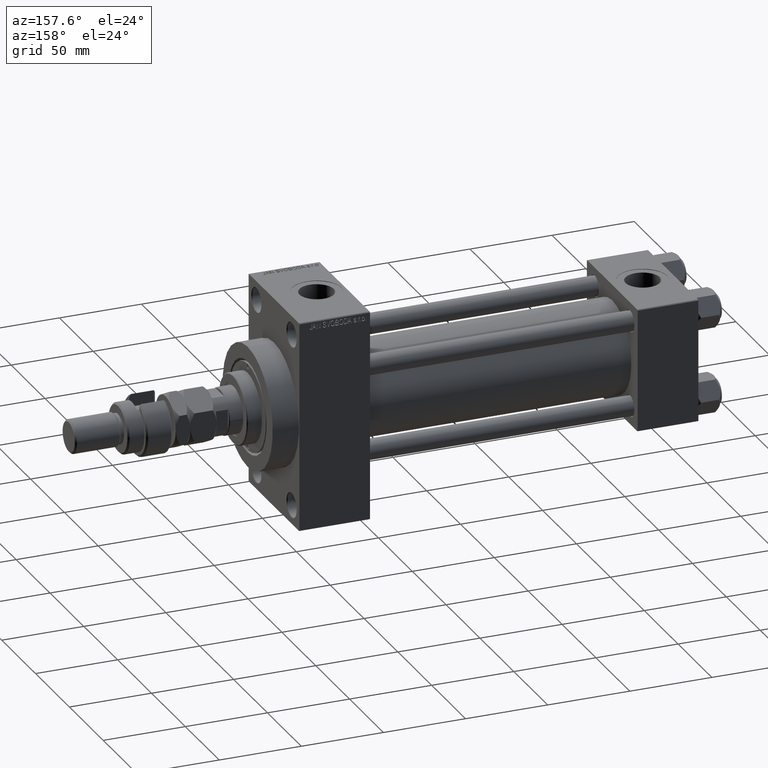
[diagram: clean part render]
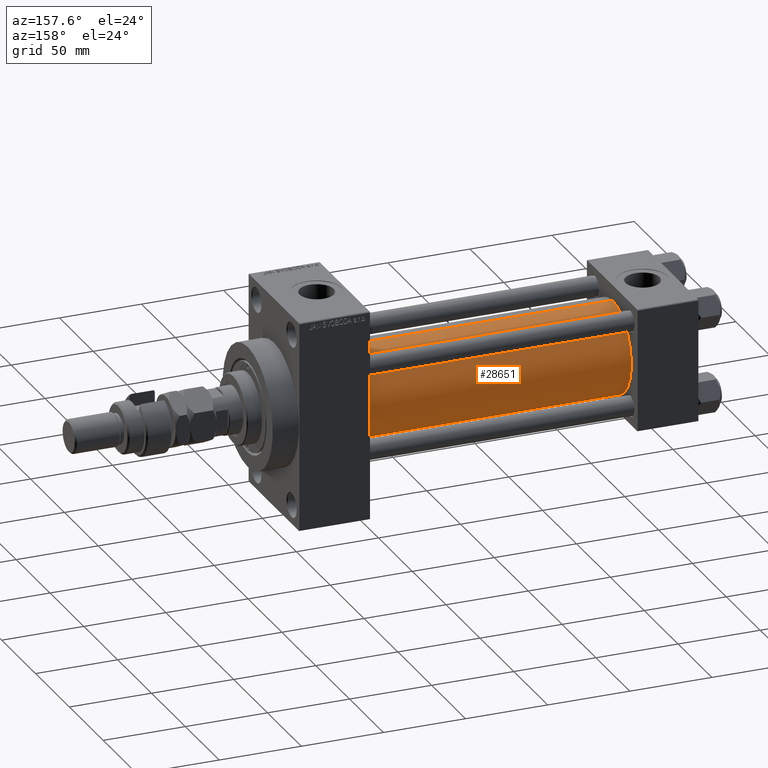
[diagram: same view with one face highlighted and labeled with its STEP entity id]
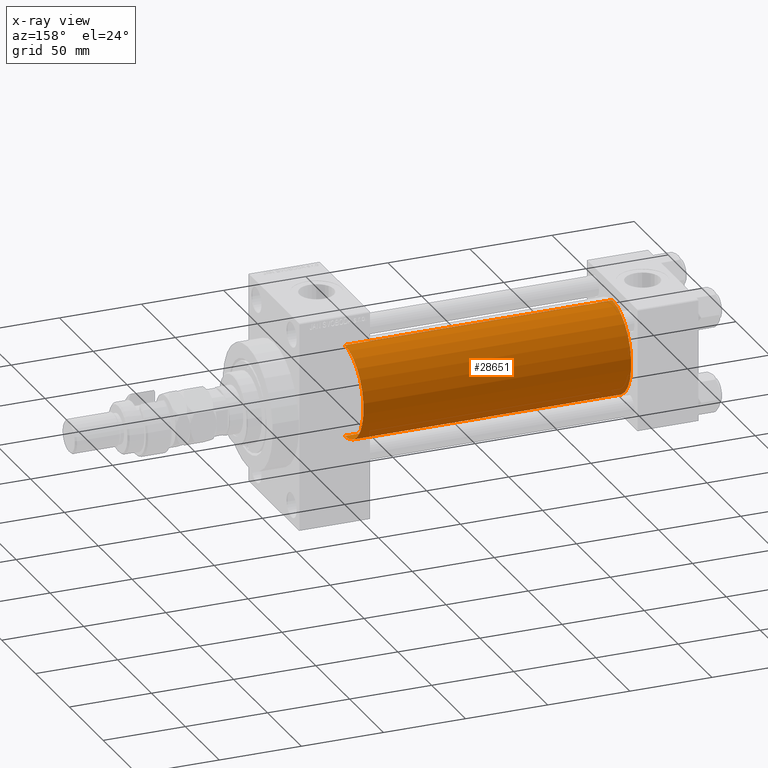
[diagram: x-ray of the same camera — body ghosted, the highlighted face saturated]
A machine part, auxiliary view. The second image highlights one B-rep face of the part: STEP entity #28651.
The next image is the same camera in x-ray: the body ghosted, the highlighted face saturated — about 0% of this face is hidden behind the body in this view.
In plain terms, the highlighted cylindrical surface (partial cylindrical patch) has radius 28 mm, axis along (-1, -0, -0).
Its self-contained STEP definition (entity closure, byte-faithful):
#1625 = AXIS2_PLACEMENT_3D ( 'NONE', #37743, #41563, #3440 ) ;
#2808 = EDGE_LOOP ( 'NONE', ( #40077, #16727, #9097, #43239 ) ) ;
#3440 = DIRECTION ( 'NONE',  ( 0.000000000000000000, 0.000000000000000000, 1.000000000000000000 ) ) ;
#8860 = LINE ( 'NONE', #24370, #11998 ) ;
#9097 = ORIENTED_EDGE ( 'NONE', *, *, #47866, .T. ) ;
#10425 = DIRECTION ( 'NONE',  ( 0.000000000000000000, 0.000000000000000000, 1.000000000000000000 ) ) ;
#11855 = EDGE_CURVE ( 'NONE', #27498, #47803, #23356, .T. ) ;
#11998 = VECTOR ( 'NONE', #28672, 1000.000000000000000 ) ;
#14305 = CARTESIAN_POINT ( 'NONE',  ( 200.0000000000000000, 8.269258236473784371E-16, -28.00000000000000000 ) ) ;
#14475 = DIRECTION ( 'NONE',  ( 0.000000000000000000, 0.000000000000000000, -1.000000000000000000 ) ) ;
#16175 = VERTEX_POINT ( 'NONE', #19103 ) ;
#16725 = CARTESIAN_POINT ( 'NONE',  ( 37.00000000000000711, -2.602085213965210642E-15, 28.00000000000000000 ) ) ;
#16727 = ORIENTED_EDGE ( 'NONE', *, *, #11855, .T. ) ;
#17355 = VECTOR ( 'NONE', #19535, 1000.000000000000000 ) ;
#17654 = AXIS2_PLACEMENT_3D ( 'NONE', #45487, #33806, #14475 ) ;
#19103 = CARTESIAN_POINT ( 'NONE',  ( 200.0000000000000000, -2.602085213965210642E-15, 28.00000000000000000 ) ) ;
#19535 = DIRECTION ( 'NONE',  ( -1.000000000000000000, -0.000000000000000000, -0.000000000000000000 ) ) ;
#20136 = AXIS2_PLACEMENT_3D ( 'NONE', #26184, #21612, #10425 ) ;
#21612 = DIRECTION ( 'NONE',  ( 1.000000000000000000, -0.000000000000000000, 0.000000000000000000 ) ) ;
#21721 = CIRCLE ( 'NONE', #20136, 28.00000000000000000 ) ;
#23356 = LINE ( 'NONE', #34538, #17355 ) ;
#24370 = CARTESIAN_POINT ( 'NONE',  ( 200.0000000000000000, -2.602085213965210642E-15, 28.00000000000000000 ) ) ;
#24823 = EDGE_CURVE ( 'NONE', #16175, #40583, #8860, .T. ) ;
#26184 = CARTESIAN_POINT ( 'NONE',  ( 37.00000000000000711, -2.602085213965210642E-15, 0.000000000000000000 ) ) ;
#27498 = VERTEX_POINT ( 'NONE', #14305 ) ;
#28651 = ADVANCED_FACE ( 'NONE', ( #37250 ), #49198, .T. ) ;
#28672 = DIRECTION ( 'NONE',  ( -1.000000000000000000, -0.000000000000000000, -0.000000000000000000 ) ) ;
#33806 = DIRECTION ( 'NONE',  ( 1.000000000000000000, 0.000000000000000000, 0.000000000000000000 ) ) ;
#34538 = CARTESIAN_POINT ( 'NONE',  ( 200.0000000000000000, 8.269258236473784371E-16, -28.00000000000000000 ) ) ;
#37250 = FACE_OUTER_BOUND ( 'NONE', #2808, .T. ) ;
#37743 = CARTESIAN_POINT ( 'NONE',  ( 200.0000000000000000, -2.602085213965210642E-15, 0.000000000000000000 ) ) ;
#40077 = ORIENTED_EDGE ( 'NONE', *, *, #47872, .F. ) ;
#40583 = VERTEX_POINT ( 'NONE', #16725 ) ;
#41563 = DIRECTION ( 'NONE',  ( -1.000000000000000000, -0.000000000000000000, -0.000000000000000000 ) ) ;
#43239 = ORIENTED_EDGE ( 'NONE', *, *, #24823, .F. ) ;
#45487 = CARTESIAN_POINT ( 'NONE',  ( 200.0000000000000000, -2.602085213965210642E-15, 0.000000000000000000 ) ) ;
#46921 = CIRCLE ( 'NONE', #17654, 28.00000000000000000 ) ;
#47342 = CARTESIAN_POINT ( 'NONE',  ( 37.00000000000000711, 8.269258236473784371E-16, -28.00000000000000000 ) ) ;
#47803 = VERTEX_POINT ( 'NONE', #47342 ) ;
#47866 = EDGE_CURVE ( 'NONE', #47803, #40583, #21721, .T. ) ;
#47872 = EDGE_CURVE ( 'NONE', #27498, #16175, #46921, .T. ) ;
#49198 = CYLINDRICAL_SURFACE ( 'NONE', #1625, 28.00000000000000000 ) ;